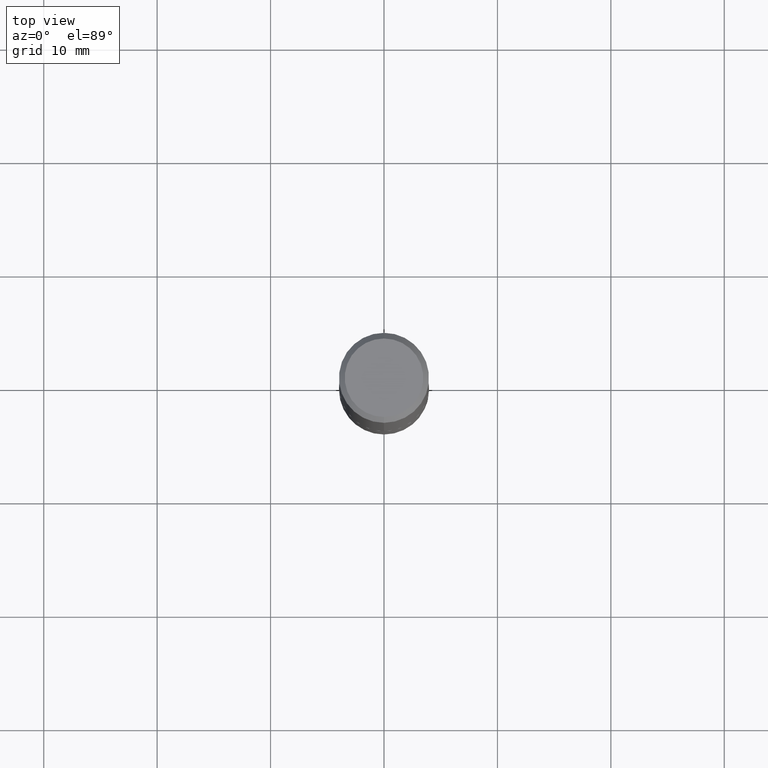
[diagram: clean part render]
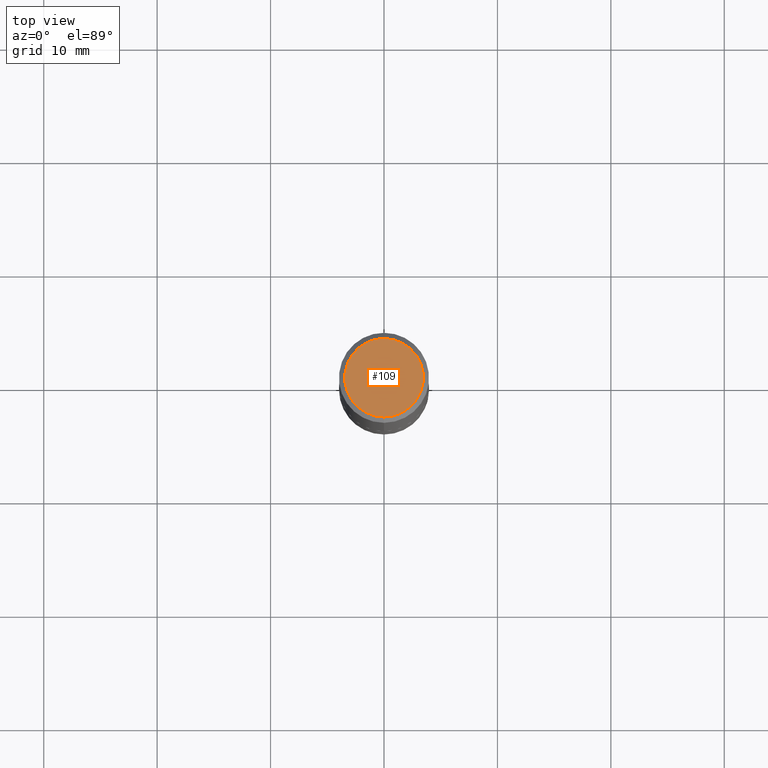
[diagram: same view with one face highlighted and labeled with its STEP entity id]
A machine part, top view. The second image highlights one B-rep face of the part: STEP entity #109.
In plain terms, the highlighted planar face has unit normal (0, -0, -1).
Its self-contained STEP definition (entity closure, byte-faithful):
#27 = AXIS2_PLACEMENT_3D ( 'NONE', #122, #159, #284 ) ;
#47 = DIRECTION ( 'NONE',  ( 2.446082020685559481E-29, -3.490603180776537498E-15, -1.000000000000000000 ) ) ;
#57 = EDGE_CURVE ( 'NONE', #261, #61, #128, .T. ) ;
#61 = VERTEX_POINT ( 'NONE', #236 ) ;
#82 = CARTESIAN_POINT ( 'NONE',  ( 9.514286648347535632E-16, 0.1362499999999999822, -4.585804579386891637E-16 ) ) ;
#106 = PLANE ( 'NONE',  #311 ) ;
#108 = ORIENTED_EDGE ( 'NONE', *, *, #57, .T. ) ;
#109 = ADVANCED_FACE ( 'NONE', ( #263 ), #106, .F. ) ;
#122 = CARTESIAN_POINT ( 'NONE',  ( -8.323638189969157673E-46, 1.187798188933841525E-31, 3.402845088422792415E-17 ) ) ;
#128 = CIRCLE ( 'NONE', #367, 0.1362499999999999822 ) ;
#137 = CARTESIAN_POINT ( 'NONE',  ( -8.323638189969157673E-46, 1.187798188933841525E-31, 3.402845088422792415E-17 ) ) ;
#153 = CIRCLE ( 'NONE', #27, 0.1362499999999999822 ) ;
#159 = DIRECTION ( 'NONE',  ( -2.446082020685560042E-29, 3.490603180776537498E-15, 1.000000000000000000 ) ) ;
#175 = CARTESIAN_POINT ( 'NONE',  ( -1.003347832174086081E-15, -0.1362499999999999822, 5.096231342650310283E-16 ) ) ;
#176 = DIRECTION ( 'NONE',  ( -2.446082020685560042E-29, 3.490603180776537498E-15, 1.000000000000000000 ) ) ;
#178 = DIRECTION ( 'NONE',  ( 6.982962677686265922E-15, 1.000000000000000000, -3.490603180776537498E-15 ) ) ;
#224 = EDGE_CURVE ( 'NONE', #61, #261, #153, .T. ) ;
#228 = ORIENTED_EDGE ( 'NONE', *, *, #224, .T. ) ;
#236 = CARTESIAN_POINT ( 'NONE',  ( 1.021258291611616664E-15, 0.1362499999999999822, -4.415662324965752417E-16 ) ) ;
#261 = VERTEX_POINT ( 'NONE', #175 ) ;
#263 = FACE_OUTER_BOUND ( 'NONE', #360, .T. ) ;
#269 = DIRECTION ( 'NONE',  ( -6.982962677686265922E-15, -1.000000000000000000, 3.490603180776537498E-15 ) ) ;
#284 = DIRECTION ( 'NONE',  ( -6.982962677686265922E-15, -1.000000000000000000, 3.490603180776537498E-15 ) ) ;
#311 = AXIS2_PLACEMENT_3D ( 'NONE', #82, #47, #178 ) ;
#360 = EDGE_LOOP ( 'NONE', ( #228, #108 ) ) ;
#367 = AXIS2_PLACEMENT_3D ( 'NONE', #137, #176, #269 ) ;